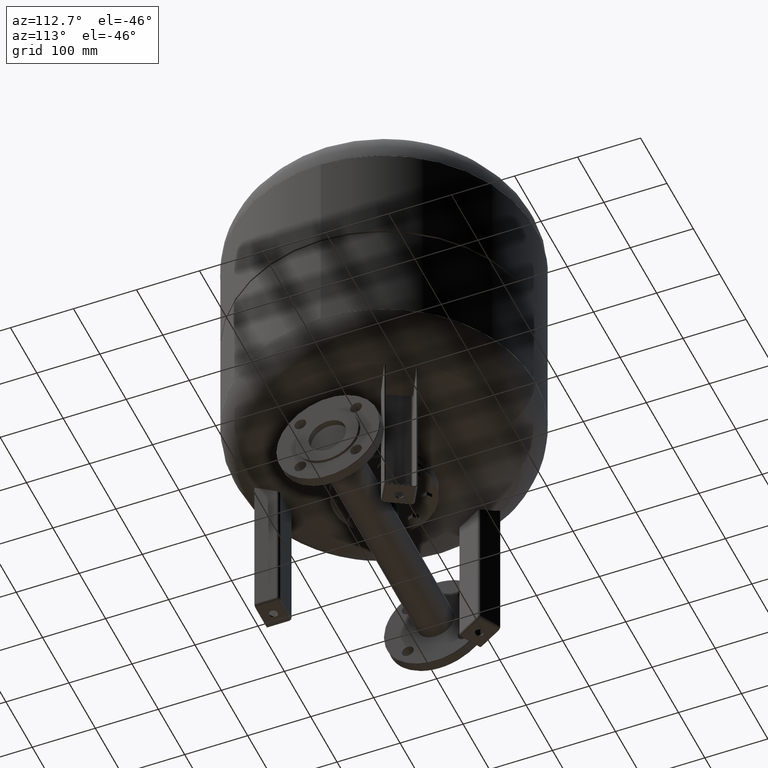
[diagram: clean part render]
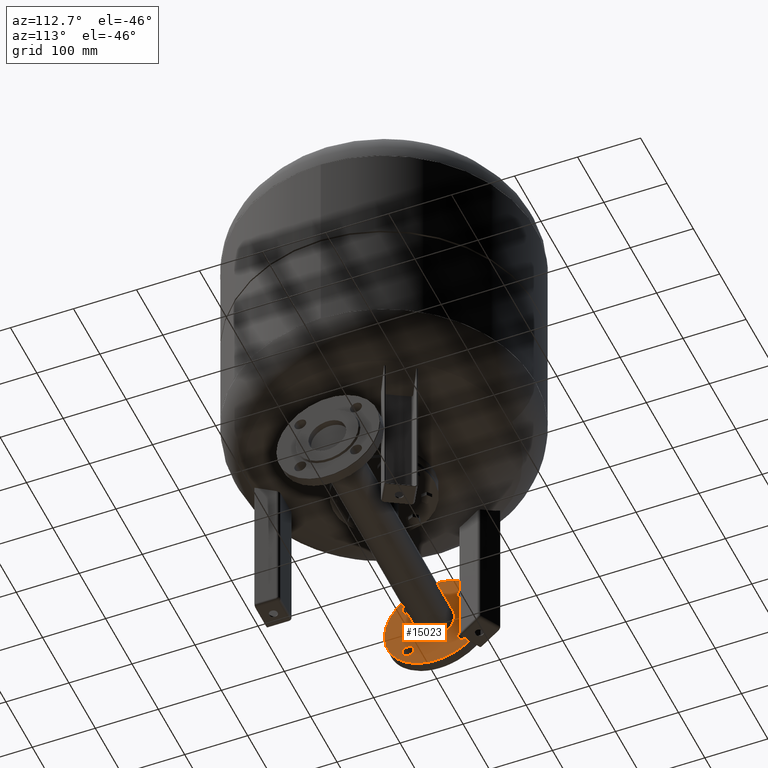
[diagram: same view with one face highlighted and labeled with its STEP entity id]
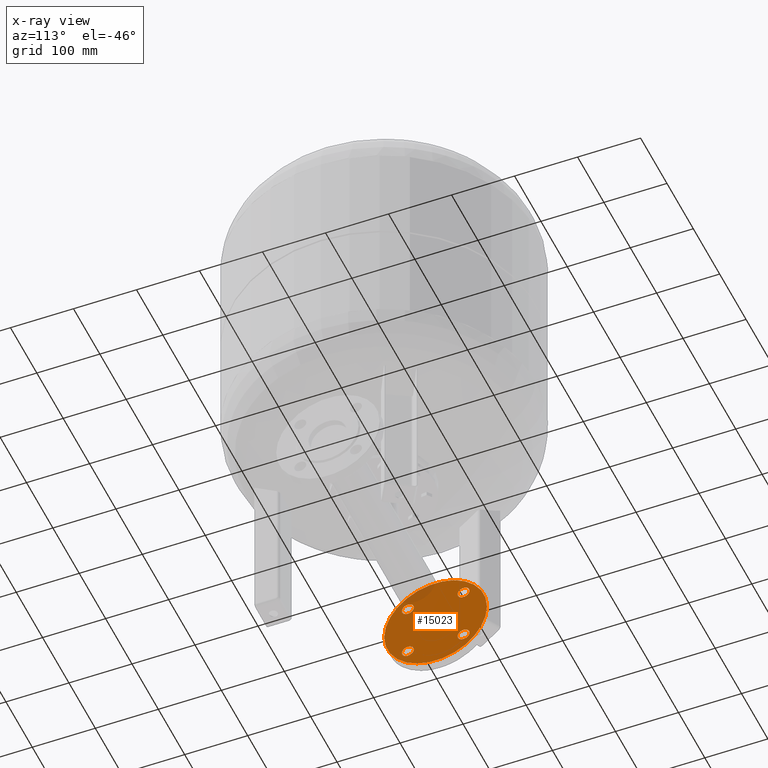
[diagram: x-ray of the same camera — body ghosted, the highlighted face saturated]
A machine part, auxiliary view. The second image highlights one B-rep face of the part: STEP entity #15023.
The next image is the same camera in x-ray: the body ghosted, the highlighted face saturated — about 4% of this face is hidden behind the body in this view.
In plain terms, the highlighted face is a freeform B-spline surface patch.
Its self-contained STEP definition (entity closure, byte-faithful):
#14394=CARTESIAN_POINT('',(-196.000000000000030,-53.694173824159122,144.194173824159320));
#14395=VERTEX_POINT('',#14394);
#14404=CARTESIAN_POINT('',(-196.0,-34.694173824159122,144.194173824159320));
#14405=VERTEX_POINT('',#14404);
#14406=CARTESIAN_POINT('',(-196.0,-44.194173824159122,144.194173824159320));
#14407=DIRECTION('',(1.0,0.0,0.0));
#14408=DIRECTION('',(0.0,-1.0,0.0));
#14409=AXIS2_PLACEMENT_3D('',#14406,#14407,#14408);
#14410=CIRCLE('',#14409,9.500000000000000);
#14411=EDGE_CURVE('',#14395,#14405,#14410,.T.);
#14457=CARTESIAN_POINT('',(-196.0,-53.694173824159272,55.805826175840828));
#14458=VERTEX_POINT('',#14457);
#14467=CARTESIAN_POINT('',(-196.0,-34.694173824159272,55.805826175840828));
#14468=VERTEX_POINT('',#14467);
#14469=CARTESIAN_POINT('',(-196.0,-44.194173824159272,55.805826175840828));
#14470=DIRECTION('',(1.0,0.0,0.0));
#14471=DIRECTION('',(0.0,-1.0,0.0));
#14472=AXIS2_PLACEMENT_3D('',#14469,#14470,#14471);
#14473=CIRCLE('',#14472,9.500000000000000);
#14474=EDGE_CURVE('',#14458,#14468,#14473,.T.);
#14520=CARTESIAN_POINT('',(-196.0,34.694173824159158,55.805826175840714));
#14521=VERTEX_POINT('',#14520);
#14530=CARTESIAN_POINT('',(-196.0,53.694173824159158,55.805826175840714));
#14531=VERTEX_POINT('',#14530);
#14532=CARTESIAN_POINT('',(-196.0,44.194173824159158,55.805826175840714));
#14533=DIRECTION('',(1.0,0.0,0.0));
#14534=DIRECTION('',(0.0,-1.0,0.0));
#14535=AXIS2_PLACEMENT_3D('',#14532,#14533,#14534);
#14536=CIRCLE('',#14535,9.500000000000000);
#14537=EDGE_CURVE('',#14521,#14531,#14536,.T.);
#14583=CARTESIAN_POINT('',(-196.0,34.694173824159300,144.194173824159150));
#14584=VERTEX_POINT('',#14583);
#14593=CARTESIAN_POINT('',(-196.0,53.694173824159300,144.194173824159150));
#14594=VERTEX_POINT('',#14593);
#14595=CARTESIAN_POINT('',(-196.0,44.194173824159300,144.194173824159150));
#14596=DIRECTION('',(1.0,0.0,0.0));
#14597=DIRECTION('',(0.0,-1.0,0.0));
#14598=AXIS2_PLACEMENT_3D('',#14595,#14596,#14597);
#14599=CIRCLE('',#14598,9.500000000000000);
#14600=EDGE_CURVE('',#14584,#14594,#14599,.T.);
#14818=CARTESIAN_POINT('',(-196.0,-81.500000000000000,100.0));
#14819=VERTEX_POINT('',#14818);
#14828=CARTESIAN_POINT('',(-195.999999999999970,81.500000000000000,100.000000000000030));
#14829=VERTEX_POINT('',#14828);
#14837=CARTESIAN_POINT('',(-196.0,-3.490128E-015,100.0));
#14838=DIRECTION('',(1.0,0.0,0.0));
#14839=DIRECTION('',(0.0,1.0,0.0));
#14840=AXIS2_PLACEMENT_3D('',#14837,#14838,#14839);
#14841=CIRCLE('',#14840,81.500000000000000);
#14842=EDGE_CURVE('',#14819,#14829,#14841,.T.);
#14917=CARTESIAN_POINT('',(-196.0,-3.490128E-015,100.0));
#14918=DIRECTION('',(1.0,0.0,0.0));
#14919=DIRECTION('',(0.0,1.0,0.0));
#14920=AXIS2_PLACEMENT_3D('',#14917,#14918,#14919);
#14921=CIRCLE('',#14920,81.500000000000000);
#14922=EDGE_CURVE('',#14829,#14819,#14921,.T.);
#14974=CARTESIAN_POINT('',(-195.999999999999940,81.500000000000000,18.500000000000000));
#14975=CARTESIAN_POINT('',(-195.999999999999970,-81.500000000000000,18.500000000000000));
#14976=CARTESIAN_POINT('',(-195.999999999999970,81.500000000000000,181.500000000000000));
#14977=CARTESIAN_POINT('',(-196.0,-81.500000000000000,181.500000000000000));
#14978=B_SPLINE_SURFACE_WITH_KNOTS('',1,1,((#14974,#14976),(#14975,#14977)),.UNSPECIFIED.,.F.,.F.,.U.,(2,2),(2,2),(0.0,163.0),(0.0,163.0),.UNSPECIFIED.);
#14979=ORIENTED_EDGE('',*,*,#14842,.T.);
#14980=ORIENTED_EDGE('',*,*,#14922,.T.);
#14981=EDGE_LOOP('',(#14979,#14980));
#14982=FACE_OUTER_BOUND('',#14981,.T.);
#14983=ORIENTED_EDGE('',*,*,#14411,.F.);
#14984=CARTESIAN_POINT('',(-196.0,-44.194173824159122,144.194173824159320));
#14985=DIRECTION('',(1.0,0.0,0.0));
#14986=DIRECTION('',(0.0,-1.0,0.0));
#14987=AXIS2_PLACEMENT_3D('',#14984,#14985,#14986);
#14988=CIRCLE('',#14987,9.500000000000000);
#14989=EDGE_CURVE('',#14405,#14395,#14988,.T.);
#14990=ORIENTED_EDGE('',*,*,#14989,.F.);
#14991=EDGE_LOOP('',(#14983,#14990));
#14992=FACE_BOUND('',#14991,.T.);
#14993=ORIENTED_EDGE('',*,*,#14474,.F.);
#14994=CARTESIAN_POINT('',(-196.0,-44.194173824159272,55.805826175840828));
#14995=DIRECTION('',(1.0,0.0,0.0));
#14996=DIRECTION('',(0.0,-1.0,0.0));
#14997=AXIS2_PLACEMENT_3D('',#14994,#14995,#14996);
#14998=CIRCLE('',#14997,9.500000000000000);
#14999=EDGE_CURVE('',#14468,#14458,#14998,.T.);
#15000=ORIENTED_EDGE('',*,*,#14999,.F.);
#15001=EDGE_LOOP('',(#14993,#15000));
#15002=FACE_BOUND('',#15001,.T.);
#15003=ORIENTED_EDGE('',*,*,#14537,.F.);
#15004=CARTESIAN_POINT('',(-196.0,44.194173824159158,55.805826175840714));
#15005=DIRECTION('',(1.0,0.0,0.0));
#15006=DIRECTION('',(0.0,-1.0,0.0));
#15007=AXIS2_PLACEMENT_3D('',#15004,#15005,#15006);
#15008=CIRCLE('',#15007,9.500000000000000);
#15009=EDGE_CURVE('',#14531,#14521,#15008,.T.);
#15010=ORIENTED_EDGE('',*,*,#15009,.F.);
#15011=EDGE_LOOP('',(#15003,#15010));
#15012=FACE_BOUND('',#15011,.T.);
#15013=ORIENTED_EDGE('',*,*,#14600,.F.);
#15014=CARTESIAN_POINT('',(-196.0,44.194173824159300,144.194173824159150));
#15015=DIRECTION('',(1.0,0.0,0.0));
#15016=DIRECTION('',(0.0,-1.0,0.0));
#15017=AXIS2_PLACEMENT_3D('',#15014,#15015,#15016);
#15018=CIRCLE('',#15017,9.500000000000000);
#15019=EDGE_CURVE('',#14594,#14584,#15018,.T.);
#15020=ORIENTED_EDGE('',*,*,#15019,.F.);
#15021=EDGE_LOOP('',(#15013,#15020));
#15022=FACE_BOUND('',#15021,.T.);
#15023=ADVANCED_FACE('',(#14982,#14992,#15002,#15012,#15022),#14978,.F.);